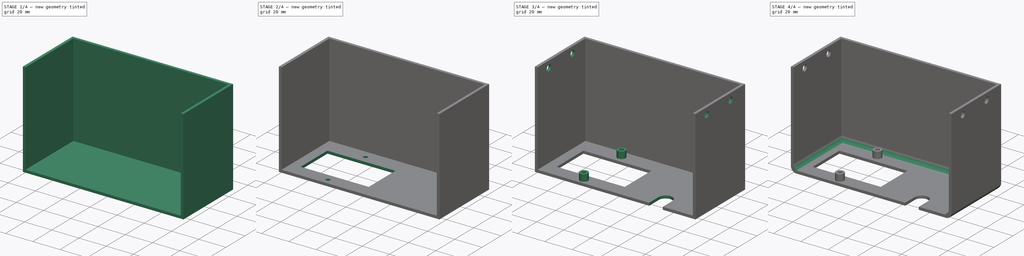
[diagram: build sequence overview — one tinted view per stage of 4, left to right]
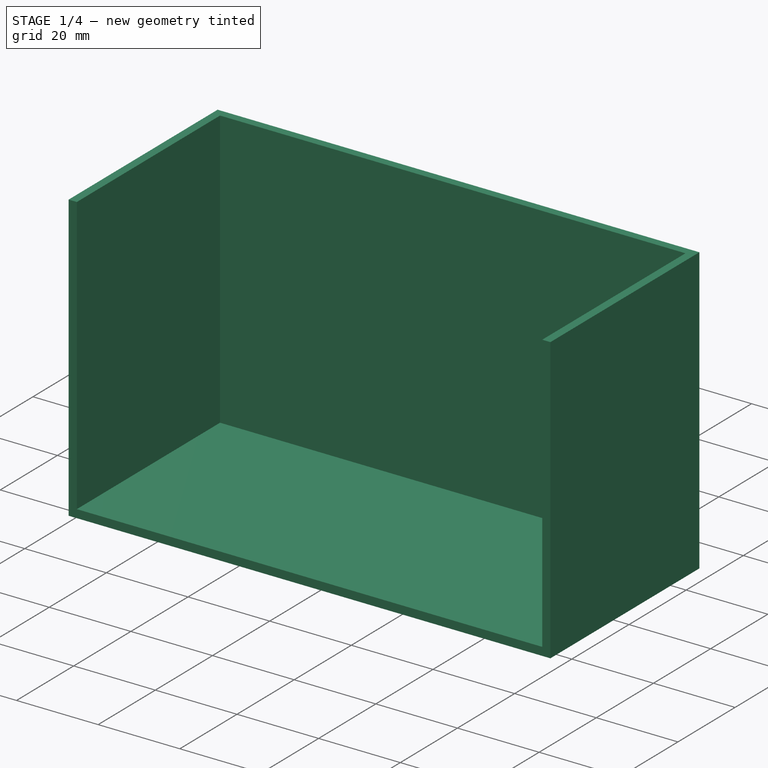
[diagram: stage 1 of 4 — iso view after this stage's code; geometry added in this stage tinted green]
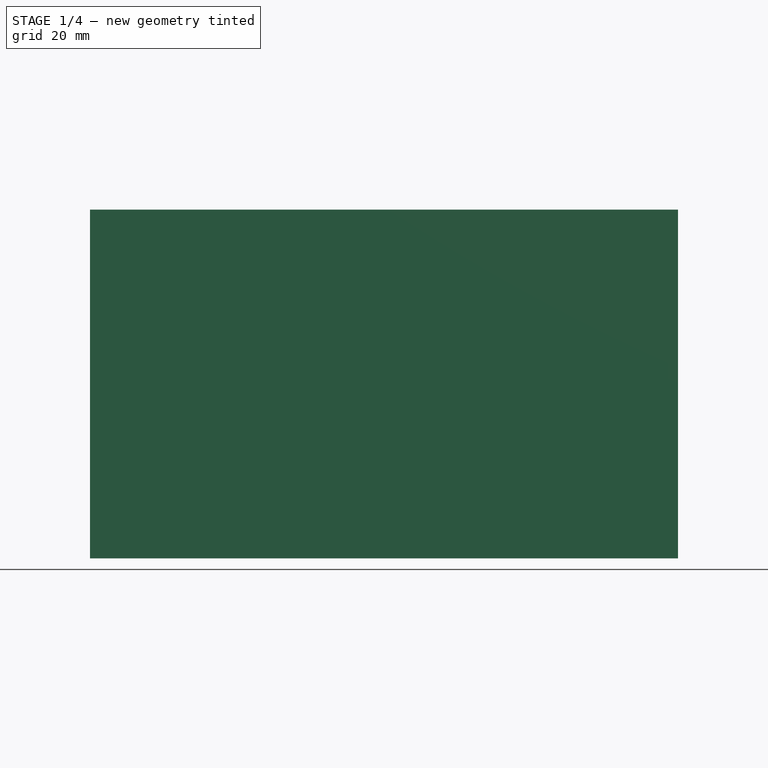
[diagram: stage 1 of 4 — front view after this stage's code; geometry added in this stage tinted green]
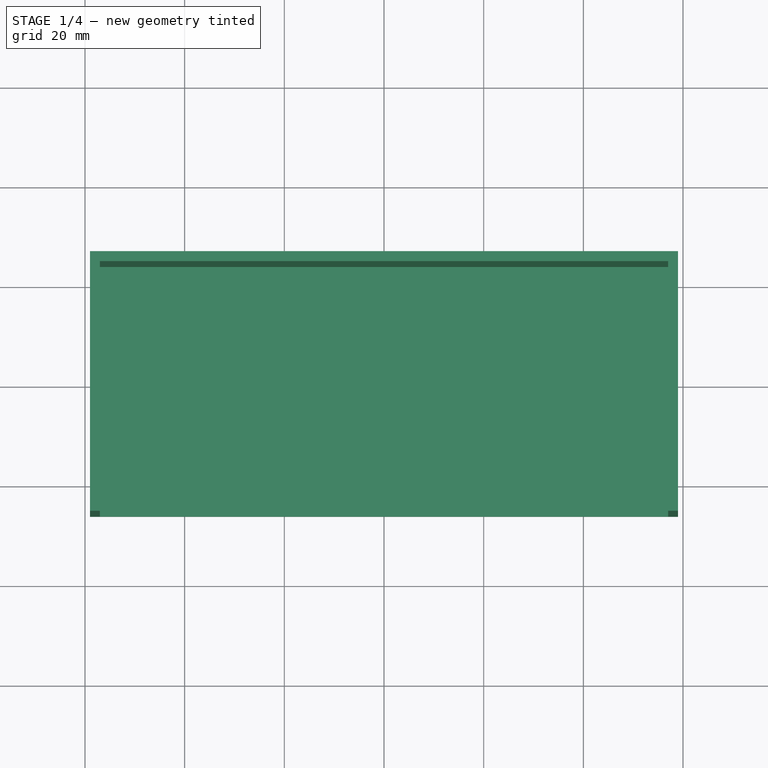
[diagram: stage 1 of 4 — top view after this stage's code; geometry added in this stage tinted green]
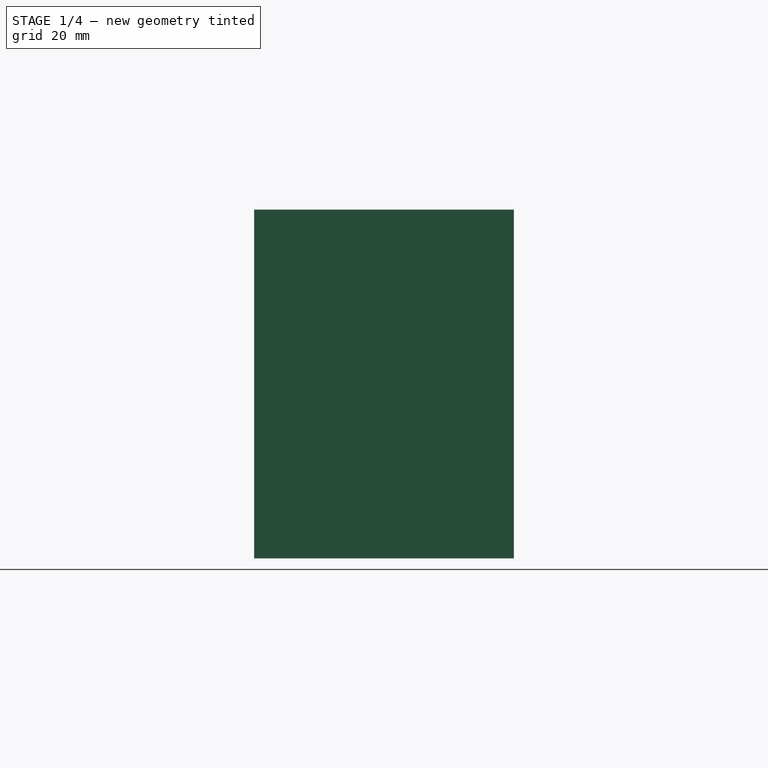
[diagram: stage 1 of 4 — right view after this stage's code; geometry added in this stage tinted green]
FCSTD DOCUMENT  (FreeCAD 0.16R6707 (Git))
Label: Power_supply_cover
License: All rights reserved
LicenseURL: http://en.wikipedia.org/wiki/All_rights_reserved
objects: Sketcher::SketchObject×7, PartDesign::Pocket×5, PartDesign::Pad×2, PartDesign::Fillet×2, Spreadsheet::Sheet×1
note: 23 computed .brp shape members not serialized (recipe doc carries the construction recipe); baked Part::Feature solids carry a one-line shape summary decoded from their .brp

FEATURE [Spreadsheet::Sheet] Spreadsheet  label="Sheet"
  cells = B3=Power Supply; B4=Width; C4(supplyWidth)=50.1; B5=Height; C5(supplyHeight)=114; B6=Length; C6(supplyLength)=70; B8=Bolt size; C8(supplyBoltSize)=2.2; B9=bolt pattern; C9(mainBoltPattern)=25; B10=Distance from outside; C10(mainDistanceFromEdge)=13.2; B12=Wall thickness; C12(mainWallThickness)=2; B14=Switch; B15=height; C15(switchHeight)=50; B16=width; C16(switchWidth)=28; B17=bolt size; C17(switchBoltSize)=1.5; B18=bolt pattern; C18(switchBoltPattern)=39.4; B19=bolt height from top; C19(switchBoltFromTop)=24; B21=Wiring Hole; C21=6
FEATURE [Sketcher::SketchObject] Sketch
  expr: Constraints[10] = Sheet.supplyWidth + Sheet.mainWallThickness
  expr: Constraints[9] = Sheet.mainWallThickness * 2 + Sheet.supplyHeight
  sketch-geometry (4):
    g0: LineSegment StartX=-59 StartY=26.05 StartZ=0 EndX=59 EndY=26.05 EndZ=0
    g1: LineSegment StartX=59 StartY=26.05 StartZ=0 EndX=59 EndY=-26.05 EndZ=0
    g2: LineSegment StartX=59 StartY=-26.05 StartZ=0 EndX=-59 EndY=-26.05 EndZ=0
    g3: LineSegment StartX=-59 StartY=-26.05 StartZ=0 EndX=-59 EndY=26.05 EndZ=0
  constraints (11):
    c: Coincident(g0,g1)
    c: Coincident(g1,g2)
    c: Coincident(g2,g3)
    c: Coincident(g3,g0)
    c: Horizontal(g0)
    c: Horizontal(g2)
    c: Vertical(g1)
    c: Vertical(g3)
    c: Symmetric(g0,g1,g-1)
    c: DistanceX(g0,g0) = 118
    c: DistanceY(g3,g3) = 52.1
FEATURE [PartDesign::Pad] Pad
  Length = 70
  Length2 = 100
  Sketch = -> Sketch
  Type = 0
  expr: Length = Sheet.supplyLength
FEATURE [Sketcher::SketchObject] Sketch001
  ExternalGeometry = -> [Pad]
  Placement = pos=(0,0,70) rot=(0,0,1;0rad)
  Support = -> Pad [Face6]
  expr: Constraints[11] = Sheet.mainWallThickness
  expr: Constraints[10] = Sheet.supplyHeight
  expr: Constraints[9] = Sheet.supplyWidth
  sketch-geometry (4):
    g0: LineSegment StartX=-57 StartY=24.05 StartZ=0 EndX=57 EndY=24.05 EndZ=0
    g1: LineSegment StartX=57 StartY=24.05 StartZ=0 EndX=57 EndY=-26.05 EndZ=0
    g2: LineSegment StartX=57 StartY=-26.05 StartZ=0 EndX=-57 EndY=-26.05 EndZ=0
    g3: LineSegment StartX=-57 StartY=-26.05 StartZ=0 EndX=-57 EndY=24.05 EndZ=0
  constraints (12):
    c: Coincident(g0,g1)
    c: Coincident(g1,g2)
    c: Coincident(g2,g3)
    c: Coincident(g3,g0)
    c: Horizontal(g0)
    c: Horizontal(g2)
    c: Vertical(g1)
    c: Vertical(g3)
    c: PointOnObject(g2,g-3)
    c: DistanceY(g3,g3) = 50.1
    c: DistanceX(g0,g0) = 114
    c: DistanceX(g1,g-3) = 2
FEATURE [PartDesign::Pocket] Pocket
  Length = 68
  Sketch = -> Sketch001
  Type = 0
  expr: Length = Sheet.supplyLength - Sheet.mainWallThickness
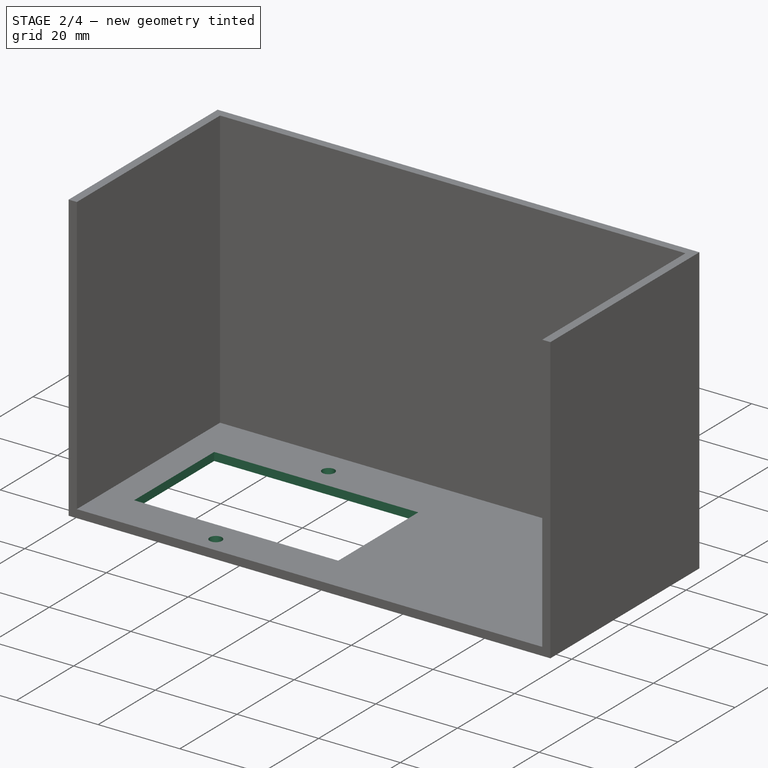
[diagram: stage 2 of 4 — iso view after this stage's code; geometry added in this stage tinted green]
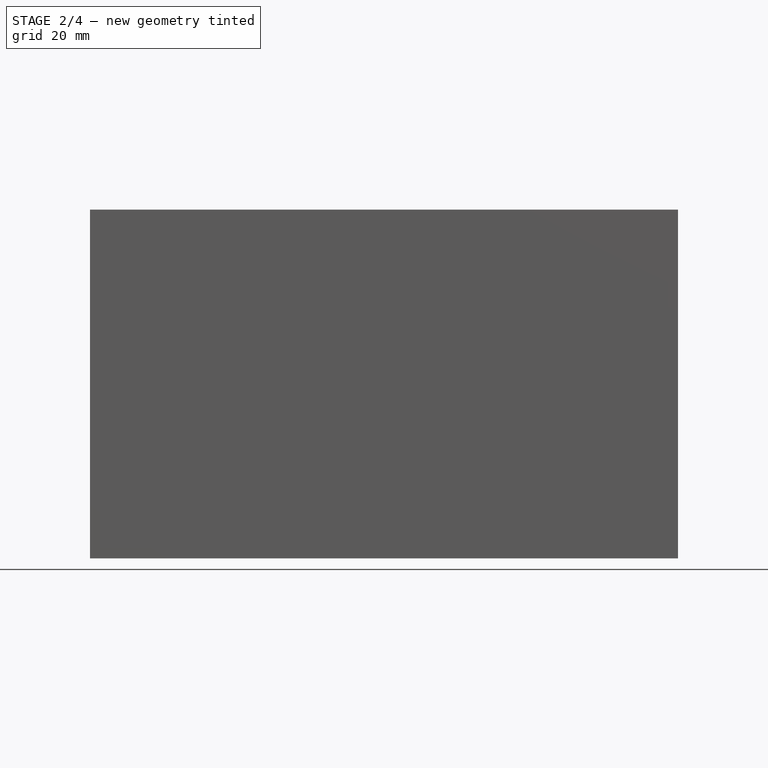
[diagram: stage 2 of 4 — front view after this stage's code; geometry added in this stage tinted green]
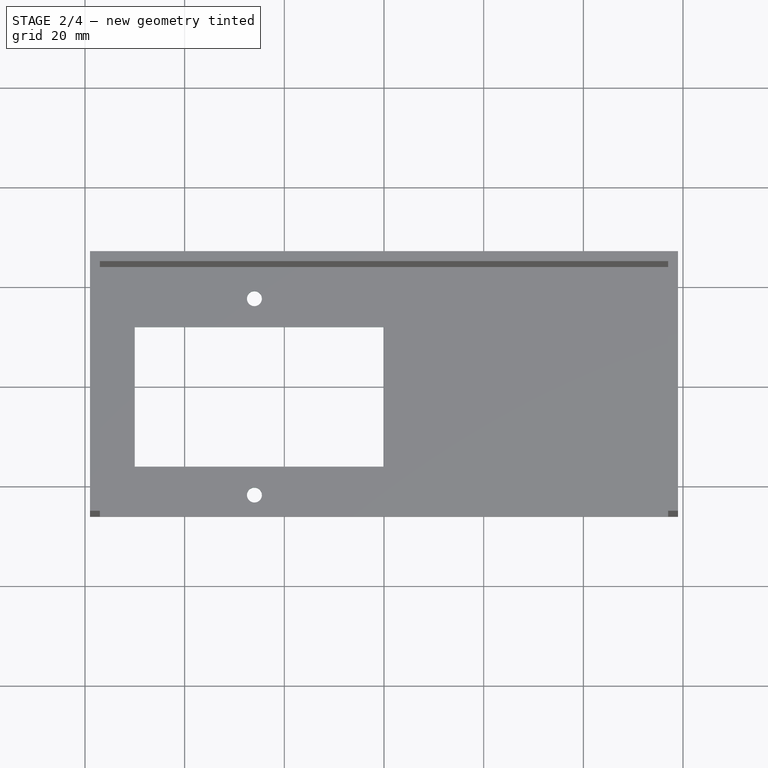
[diagram: stage 2 of 4 — top view after this stage's code; geometry added in this stage tinted green]
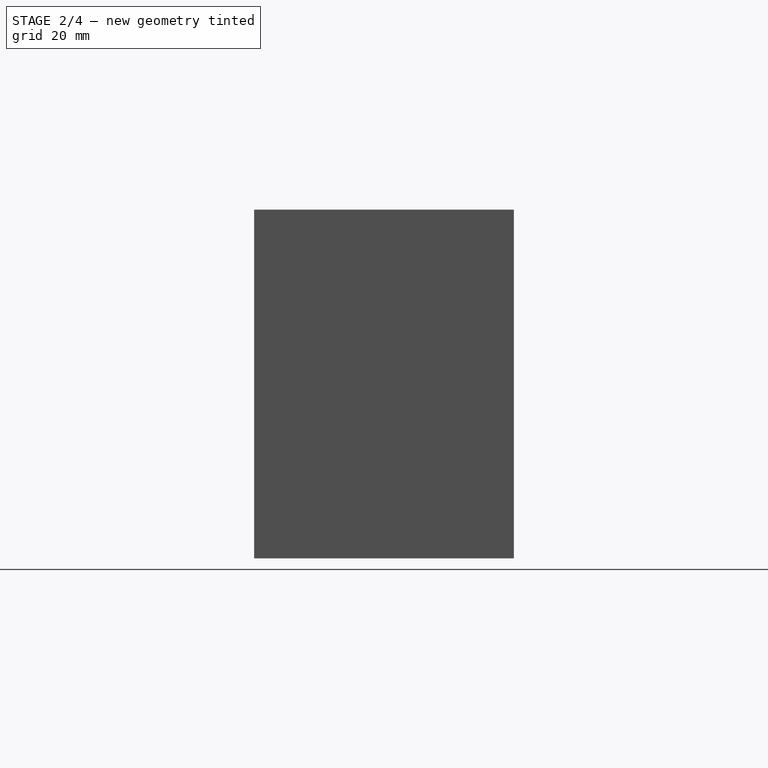
[diagram: stage 2 of 4 — right view after this stage's code; geometry added in this stage tinted green]
FEATURE [Sketcher::SketchObject] Sketch002
  Placement = pos=(0,0,2) rot=(0,0,1;0rad)
  Support = -> Pocket [Face10]
  expr: Constraints[9] = Sheet.switchWidth
  expr: Constraints[10] = Sheet.switchHeight
  sketch-geometry (5):
    g0: LineSegment StartX=0 StartY=12 StartZ=0 EndX=-50 EndY=12 EndZ=0
    g1: LineSegment StartX=-50 StartY=12 StartZ=0 EndX=-50 EndY=-16 EndZ=0
    g2: LineSegment StartX=-50 StartY=-16 StartZ=0 EndX=0 EndY=-16 EndZ=0
    g3: LineSegment StartX=0 StartY=-16 StartZ=0 EndX=0 EndY=12 EndZ=0
    g4: GeomPoint [constr] X=-25 Y=-2 Z=0
  constraints (13):
    c: Coincident(g0,g1)
    c: Coincident(g1,g2)
    c: Coincident(g2,g3)
    c: Coincident(g3,g0)
    c: Horizontal(g0)
    c: Horizontal(g2)
    c: Vertical(g1)
    c: Vertical(g3)
    c: Symmetric(g0,g2,g4)
    c: DistanceY(g1,g1) = 28
    c: DistanceX(g0,g0) = 50
    c: DistanceX(g0,g-1) = 0
    c: DistanceY(g4,g-1) = 2
FEATURE [PartDesign::Pocket] Pocket001
  Length = 5
  Sketch = -> Sketch002
  Type = 1
FEATURE [Sketcher::SketchObject] Sketch003
  ExternalGeometry = -> [Pocket001]
  Placement = pos=(0,0,2) rot=(0,0,1;0rad)
  Support = -> Pocket001 [Face14]
  expr: Constraints[7] = Sheet.switchBoltFromTop
  expr: Constraints[6] = Sheet.switchBoltPattern / 2 - 2
  expr: Constraints[5] = Sheet.switchBoltPattern
  expr: Constraints[0] = Sheet.switchBoltSize
  sketch-geometry (3):
    g0: Circle CenterX=-26 CenterY=17.7 CenterZ=0 NormalX=0 NormalY=0 NormalZ=1 Radius=1.5
    g1: Circle CenterX=-26 CenterY=-21.7 CenterZ=0 NormalX=0 NormalY=0 NormalZ=1 Radius=1.5
    g2: LineSegment [constr] StartX=-26 StartY=17.7 StartZ=0 EndX=-26 EndY=-21.7 EndZ=0
  constraints (8):
    c: Radius(g0) = 1.5
    c: Equal(g0,g1)
    c: Coincident(g1,g2)
    c: Coincident(g0,g2)
    c: Vertical(g2)
    c: DistanceY(g2,g2) = 39.4
    c: DistanceY(g-1,g0) = 17.7
    c: DistanceX(g-3,g0) = 24
FEATURE [PartDesign::Pocket] Pocket002
  Length = 5
  Sketch = -> Sketch003
  Type = 1
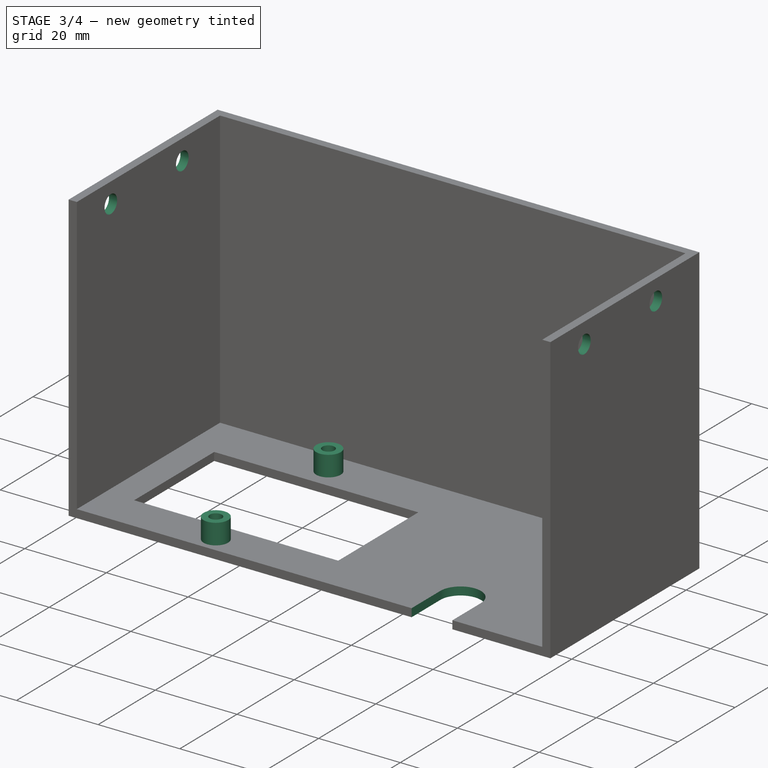
[diagram: stage 3 of 4 — iso view after this stage's code; geometry added in this stage tinted green]
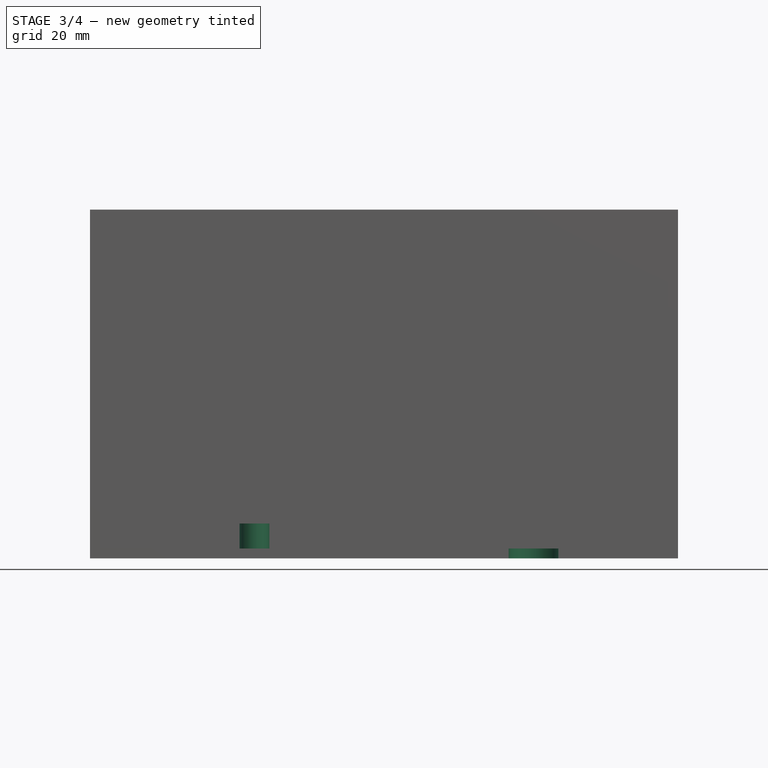
[diagram: stage 3 of 4 — front view after this stage's code; geometry added in this stage tinted green]
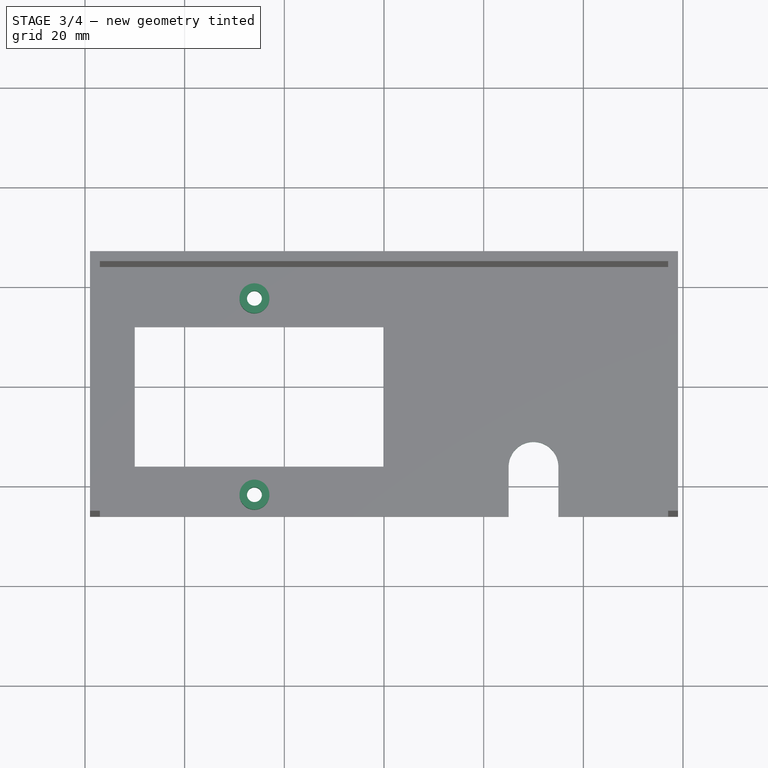
[diagram: stage 3 of 4 — top view after this stage's code; geometry added in this stage tinted green]
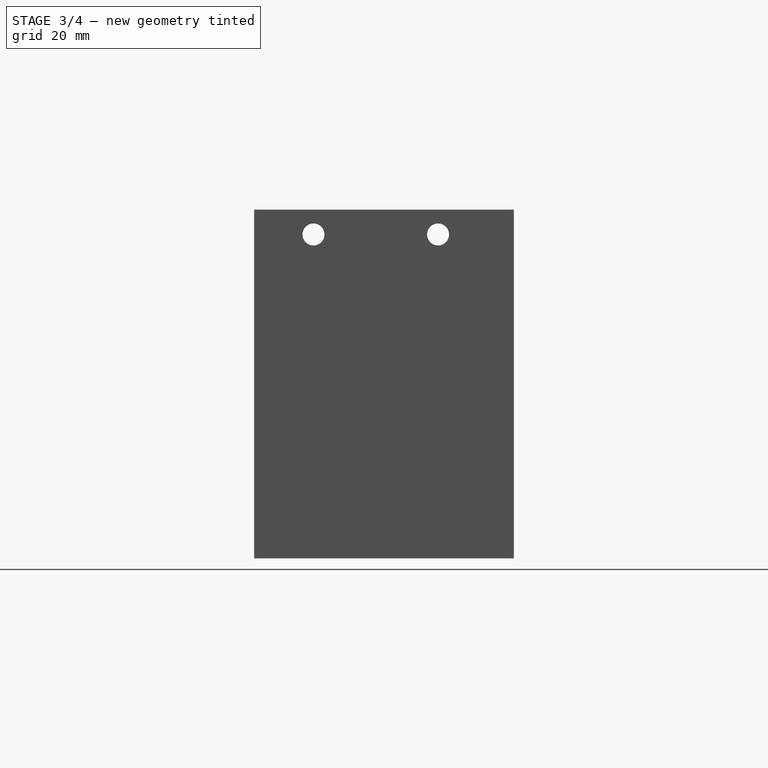
[diagram: stage 3 of 4 — right view after this stage's code; geometry added in this stage tinted green]
FEATURE [Sketcher::SketchObject] Sketch004
  ExternalGeometry = -> [Pocket002]
  Placement = pos=(0,0,2) rot=(0,0,1;0rad)
  Support = -> Pocket002 [Face16]
  expr: Constraints[5] = Sheet.switchBoltSize
  expr: Constraints[1] = Sheet.switchBoltSize
  sketch-geometry (4):
    g0: Circle CenterX=-26 CenterY=17.7 CenterZ=0 NormalX=0 NormalY=0 NormalZ=1 Radius=1.5
    g1: Circle CenterX=-26 CenterY=17.7 CenterZ=0 NormalX=0 NormalY=0 NormalZ=1 Radius=3
    g2: Circle CenterX=-26 CenterY=-21.7 CenterZ=0 NormalX=0 NormalY=0 NormalZ=1 Radius=1.5
    g3: Circle CenterX=-26 CenterY=-21.7 CenterZ=0 NormalX=0 NormalY=0 NormalZ=1 Radius=3
  constraints (8):
    c: Coincident(g0,g-3)
    c: Radius(g0) = 1.5
    c: Coincident(g0,g1)
    c: Radius(g1) = 3
    c: Coincident(g2,g-4)
    c: Radius(g2) = 1.5
    c: Coincident(g2,g3)
    c: Radius(g3) = 3
FEATURE [PartDesign::Pad] Pad001
  Length = 5
  Length2 = 100
  Sketch = -> Sketch004
  Type = 0
FEATURE [Sketcher::SketchObject] Sketch005
  ExternalGeometry = -> [Pad001]
  Placement = pos=(-59,0,0) rot=(0.57735,-0.57735,-0.57735;2.0944rad)
  Support = -> Pad001 [Face2]
  expr: Constraints[7] = Sheet.mainBoltPattern
  expr: Constraints[6] = Sheet.mainDistanceFromEdge + Sheet.mainWallThickness
  expr: Constraints[4] = 5
  expr: Constraints[0] = Sheet.supplyBoltSize
  sketch-geometry (3):
    g0: Circle CenterX=-10.85 CenterY=65 CenterZ=0 NormalX=0 NormalY=0 NormalZ=1 Radius=2.2
    g1: Circle CenterX=14.15 CenterY=65 CenterZ=0 NormalX=0 NormalY=0 NormalZ=1 Radius=2.2
    g2: LineSegment [constr] StartX=14.15 StartY=65 StartZ=0 EndX=-10.85 EndY=65 EndZ=0
  constraints (8):
    c: Radius(g0) = 2.2
    c: Equal(g0,g1)
    c: Coincident(g0,g2)
    c: Horizontal(g2)
    c: DistanceY(g1,g-3) = 5
    c: Coincident(g2,g1)
    c: DistanceX(g-3,g0) = 15.2
    c: DistanceX(g2,g2) = 25
FEATURE [PartDesign::Pocket] Pocket003
  Length = 5
  Sketch = -> Sketch005
  Type = 1
FEATURE [Sketcher::SketchObject] Sketch006
  ExternalGeometry = -> [Pocket003]
  Placement = pos=(0,0,2) rot=(0,0,1;0rad)
  Support = -> Pocket003 [Face20]
  sketch-geometry (4):
    g0: LineSegment StartX=35 StartY=-16.05 StartZ=0 EndX=35 EndY=-26.05 EndZ=0
    g1: LineSegment StartX=35 StartY=-26.05 StartZ=0 EndX=25 EndY=-26.05 EndZ=0
    g2: LineSegment StartX=25 StartY=-26.05 StartZ=0 EndX=25 EndY=-16.05 EndZ=0
    g3: ArcOfCircle CenterX=30 CenterY=-16.05 CenterZ=0 NormalX=0 NormalY=0 NormalZ=1 Radius=5 StartAngle=6.28318 EndAngle=9.42478
  constraints (12):
    c: Coincident(g0,g1)
    c: Coincident(g1,g2)
    c: Horizontal(g1)
    c: Vertical(g0)
    c: Vertical(g2)
    c: PointOnObject(g0,g-3)
    c: DistanceY(g2,g2) = 10
    c: DistanceX(g2,g0) = 10
    c: Coincident(g2,g3)
    c: Coincident(g0,g3)
    c: Radius(g3) = 5
    c: DistanceX(g0,g-3) = 22
FEATURE [PartDesign::Pocket] Pocket004
  Length = 5
  Sketch = -> Sketch006
  Type = 1
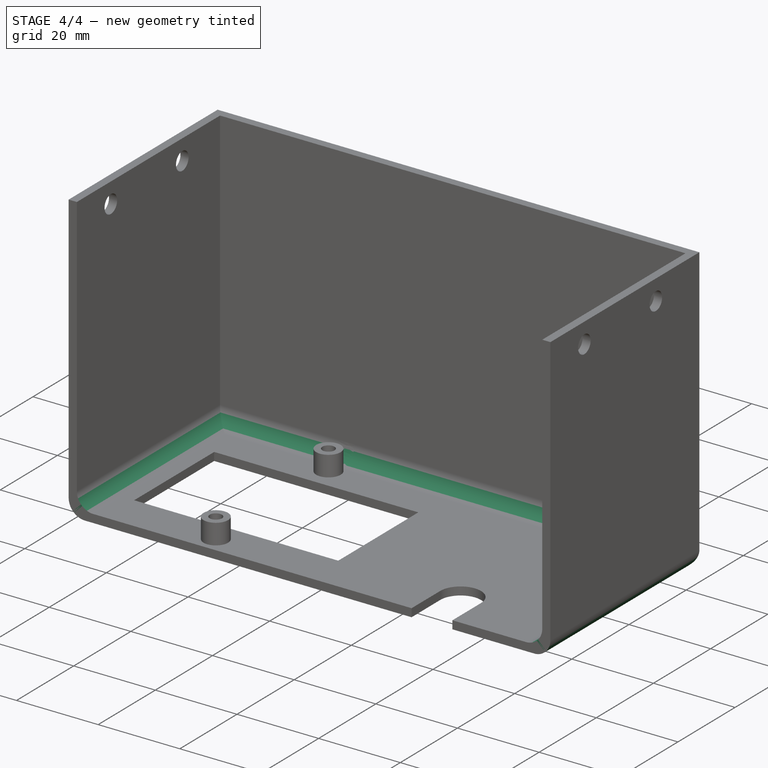
[diagram: stage 4 of 4 — iso view after this stage's code; geometry added in this stage tinted green]
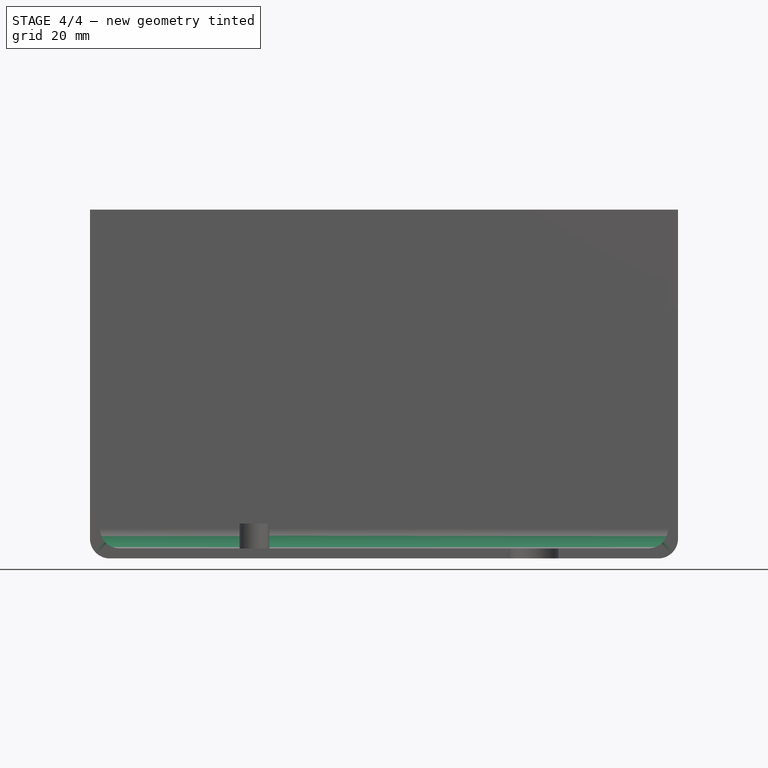
[diagram: stage 4 of 4 — front view after this stage's code; geometry added in this stage tinted green]
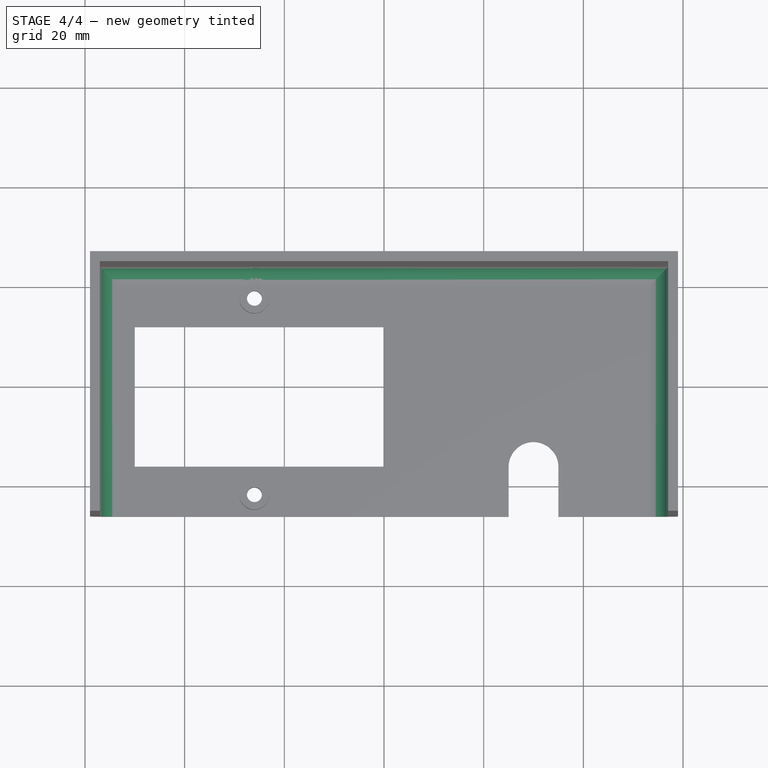
[diagram: stage 4 of 4 — top view after this stage's code; geometry added in this stage tinted green]
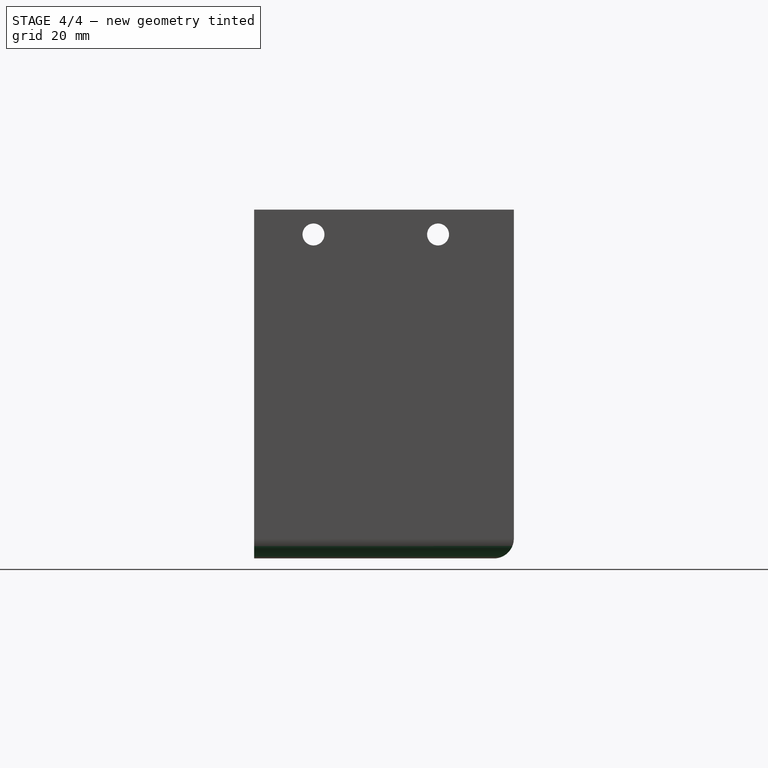
[diagram: stage 4 of 4 — right view after this stage's code; geometry added in this stage tinted green]
FEATURE [PartDesign::Fillet] Fillet
  Base = -> Pocket004 [Edge65,Edge66,Edge63]
  Radius = 4
FEATURE [PartDesign::Fillet] Fillet001
  Base = -> Fillet [Edge35,Edge41,Edge42]
  Radius = 4
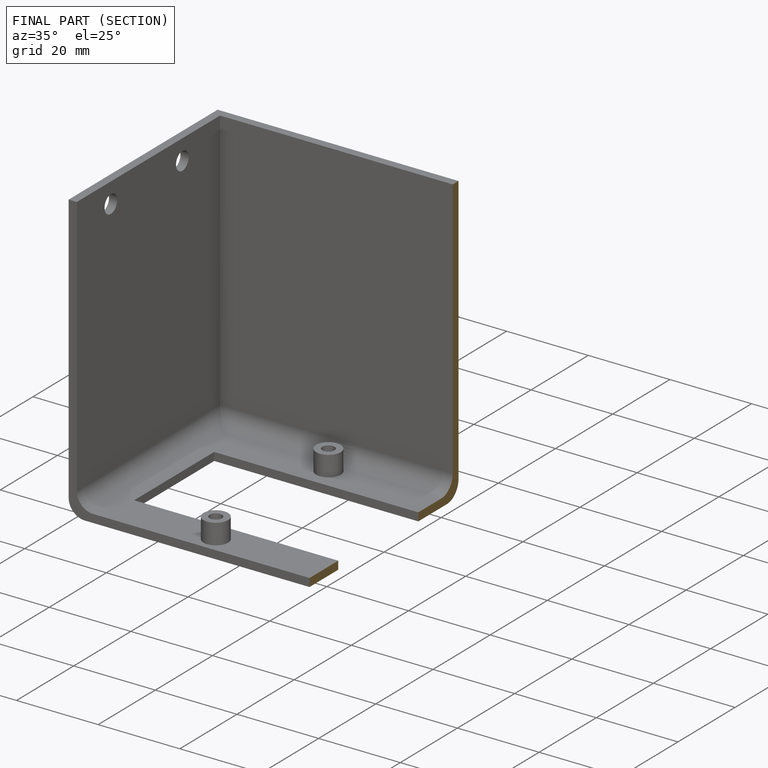
[diagram: finished part — half-section view (interior)]
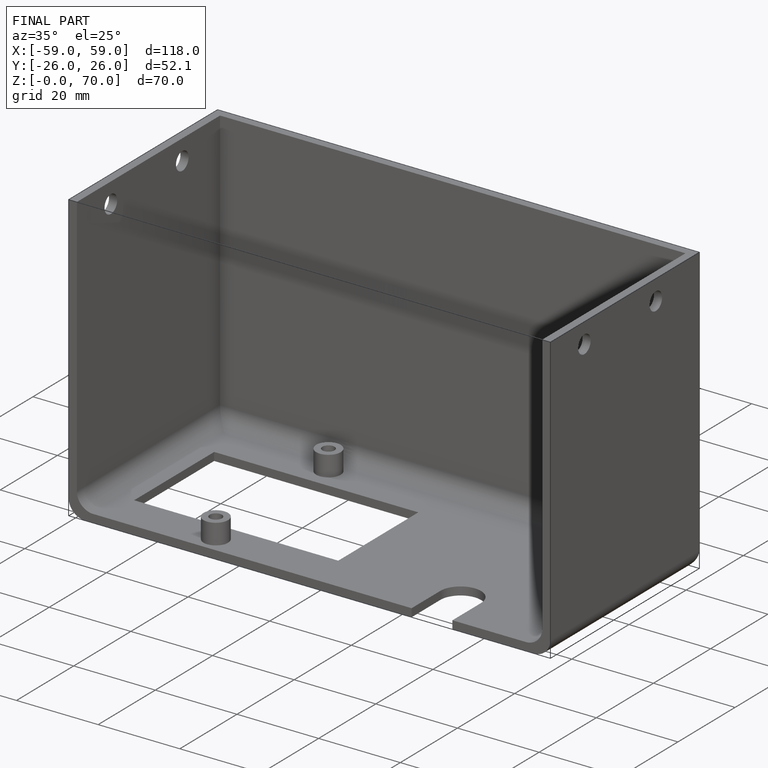
[diagram: finished part — iso view with bounding-box wireframe]
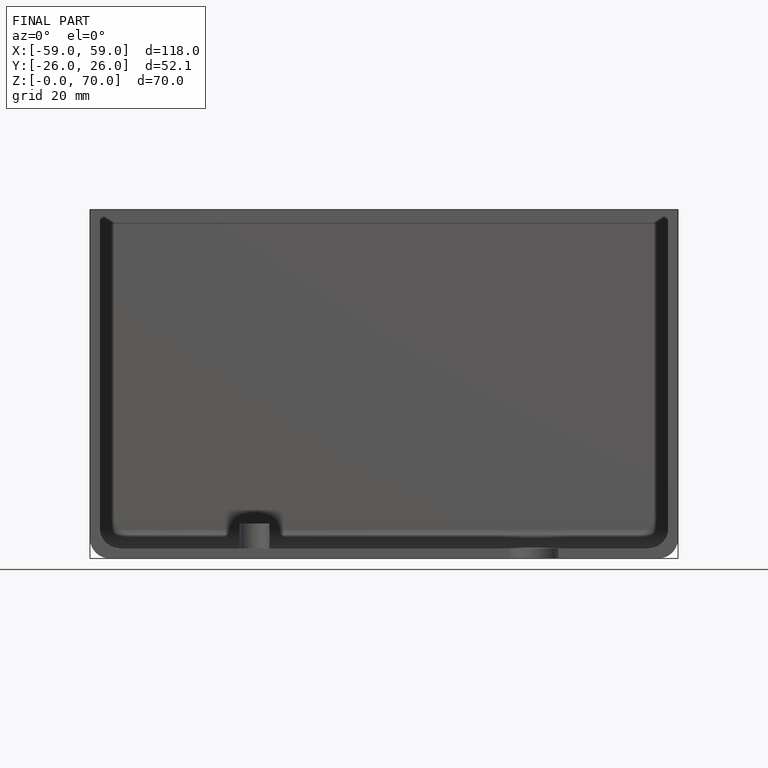
[diagram: finished part — front view with bounding-box wireframe]
